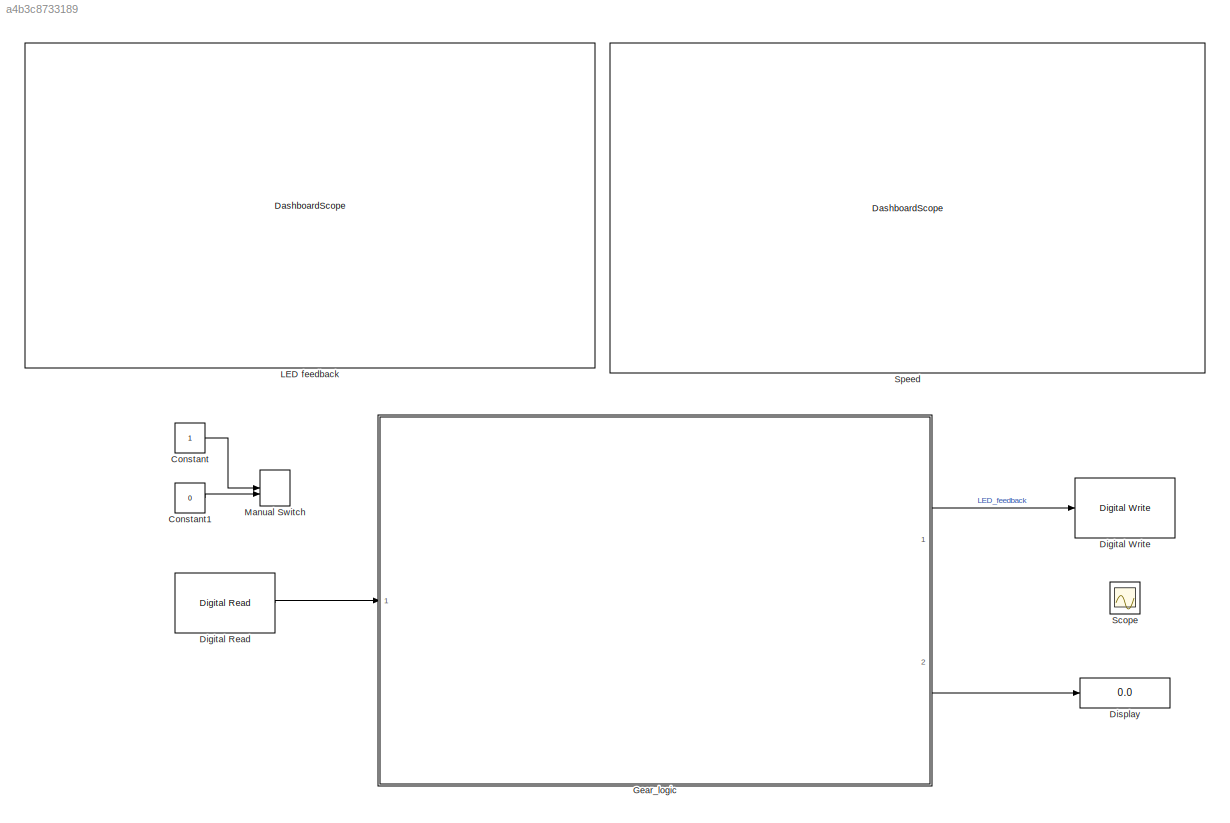
MODEL slx_a4b3c8733189
KIND model
CONFIG AbsTol = auto
CONFIG EnableMultiTasking = on
CONFIG FixedStep = 0.01
CONFIG MaxStep = auto
CONFIG MinStep = auto
CONFIG RelTol = 1e-3
CONFIG SampleTimeConstraint = Unconstrained
CONFIG SolverName = FixedStepAuto
CONFIG StartTime = 0.0
CONFIG StopTime = 50
WORKSPACE source: mxarray member
WORKSPACE Var = 0
WORKSPACE downtab = [0 0 0 0 0 0 5 5 5 5 30 30 ... (24 elements, 6x4)]
WORKSPACE downth = [0 5 40 50 90 100]
WORKSPACE uptab = [10 10 15 23 40 40 30 30 30 41 70 70 ... (24 elements, 6x4)]
WORKSPACE upth = [0 25 35 50 90 100]
BLOCK [Constant] Constant
  Commented = on
BLOCK [Constant] Constant1
  Commented = on
  Value = 0
BLOCK [Reference] Digital Read  REF=mbedblockslib/Digital Read
  Ports = [0, 1]
  SourceBlock = mbedblockslib/Digital Read
  SourceProductBaseCode = MICROBIT,NUCLEO,STMICRODIS
  SourceType = mbed.DigitalRead
BLOCK [Reference] Digital Write  REF=mbedblockslib/Digital Write
  Ports = [1]
  SourceBlock = mbedblockslib/Digital Write
  SourceProductBaseCode = MICROBIT,NUCLEO,STMICRODIS
  SourceType = mbed.DigitalWrite
BLOCK [Display] Display
  Decimation = 1
  Ports = [1]
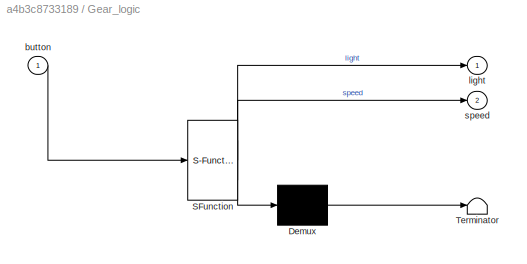
BLOCK [SubSystem] Gear_logic
  ErrorFcn = Stateflow.Translate.translate
  PermitHierarchicalResolution = ExplicitOnly
  Ports = [1, 2]
  RequestExecContextInheritance = off
  SFBlockType = Chart
  TreatAsAtomicUnit = on
BLOCK [Demux] Gear_logic/ Demux 
  Outputs = 1
  Ports = [1, 1]
BLOCK [S-Function] Gear_logic/ SFunction 
  EnableBusSupport = on
  FunctionName = sf_sfun
  PortCounts = [1 3]
  Ports = [1, 3]
  SFcnIsStateOwnerBlock = off
  SFunctionDeploymentMode = off
  Tag = Stateflow S-Function 3
BLOCK [Terminator] Gear_logic/ Terminator 
BLOCK [Inport] Gear_logic/button
BLOCK [Outport] Gear_logic/light
BLOCK [Outport] Gear_logic/speed
  Port = 2
BLOCK [DashboardScope] LED feedback
BLOCK [ManualSwitch] Manual Switch
  Commented = on
  CurrentSetting = 0
BLOCK [Scope] Scope
  Commented = on
  Floating = off
  NumInputPorts = 1
  Ports = [1]
  ScopeSpecificationString = Simulink.scopes.TimeScopeBlockCfg('CurrentConfiguration', extmgr.ConfigurationSet(extmgr.Configuration('Core','General UI',true),extmgr.Configuration('Core','Source UI',true),extmgr.Configuration('Sources','WiredSimulink',true),extmgr.Configuration('Visuals','Time Domain',true),extmgr.Configuration('Tools','Plot Navigation',true),extmgr.Configuration('Tools','Measurements',true,'Version','2021a'))...<+19ch>
BLOCK [DashboardScope] Speed
  Ymax = 100
  Ymin = 0
LINE Constant1:1 -> Manual Switch:2
LINE Constant:1 -> Manual Switch:1
LINE Digital Read:1 -> Gear_logic:1
LINE Gear_logic:1 -> Digital Write:1
LINE Gear_logic:2 -> Display:1
CHART Gear_logic states=23 transitions=30
  STATE_LABEL 'gear_logic'
  STATE_LABEL 'move_state'
  STATE_LABEL 'cruise\n\nentry:\ndelta = 0;\n'
  STATE_LABEL 'decel\n\nentry:\ndelta = -0.08;'
  STATE_LABEL 'accel\n\nentry:\ndelta = 0.08;'
  STATE_LABEL '[hasChangedTo(button, 0)]{scaleDown = 0;}'
  STATE_LABEL '[hasChangedTo(button, 0) && scaleDown == 0]'
  STATE_LABEL '[hasChangedTo(button, 0) && scaleDown ==  1]'
  STATE_LABEL '[hasChangedTo(button, 0)]{scaleDown = 1;}'
  STATE_LABEL 'gear_state\n\nduring:\nspeed = max(0,min(speed+delta,100));'
  STATE_LABEL 'first\nentry:\ngear=1;'
  STATE_LABEL 'second\nentry:\ngear=2;'
  STATE_LABEL 'third\nentry:\ngear=3;'
  STATE_LABEL 'fourth\nentry:\ngear=4;'
  STATE_LABEL 'UP'
  STATE_LABEL 'UP'
  STATE_LABEL 'UP'
  STATE_LABEL 'DOWN'
  STATE_LABEL 'DOWN'
  STATE_LABEL 'DOWN'
  STATE_LABEL 'led_state\n'
  STATE_LABEL 'blink_on_gear_change'
  STATE_LABEL 'OFF\nentry:\nlight=0;'
  STATE_LABEL 'ON\nentry:\nlight=1;'
  STATE_LABEL 'after(0.05,sec)'
  STATE_LABEL 'UP || DOWN'
  STATE_LABEL 'blinking'
  STATE_LABEL 'OFF\nentry:\nlight=0;'
  STATE_LABEL 'ON\nentry:\nlight=1;'
  STATE_LABEL 'after(0.05,sec)'
  STATE_LABEL 'after(0.05,sec)'
  STATE_LABEL 'prepare_to_blink'
  STATE_LABEL '[delta <= 0]'
  STATE_LABEL '[light == 0 && gear == 4 && speed >= up_th]'
  STATE_LABEL '[gear < 4]'
  STATE_LABEL 'after(0.01,sec)'
  STATE_LABEL 'selection_state\nduring:\ncomputeThresholds();'
  STATE_LABEL 'steady_state'
  STATE_LABEL 'downshifting'
  STATE_LABEL 'upshifting'
CHART  states=0 transitions=0
